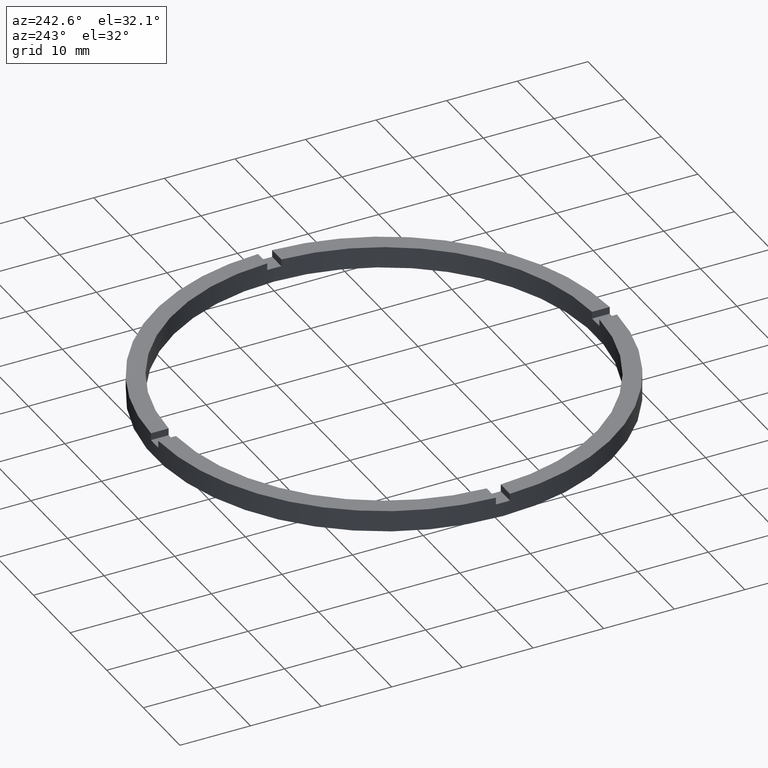
[diagram: clean part render]
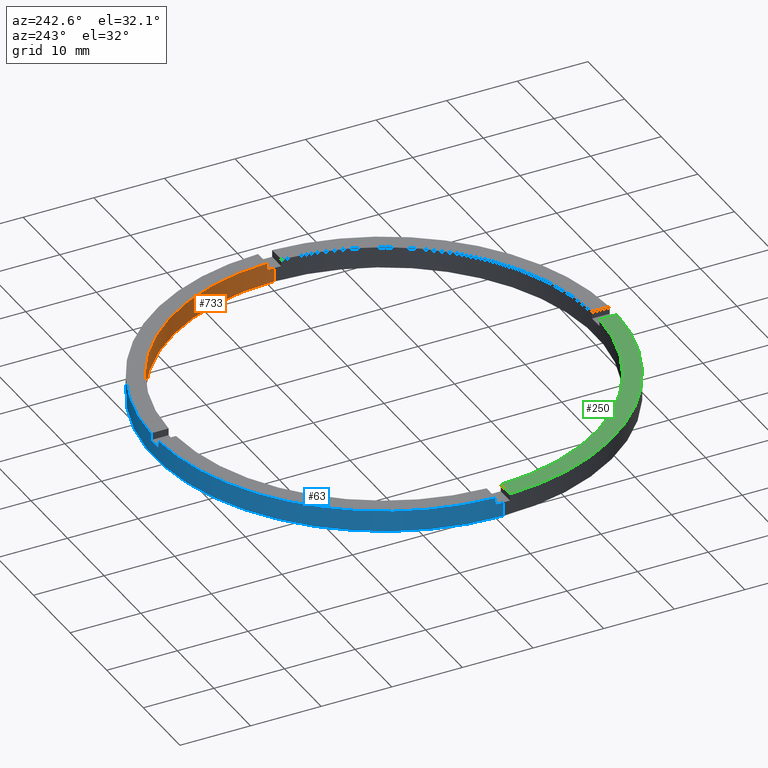
[diagram: same view with three faces highlighted in distinct colors, each labeled with its STEP entity id]
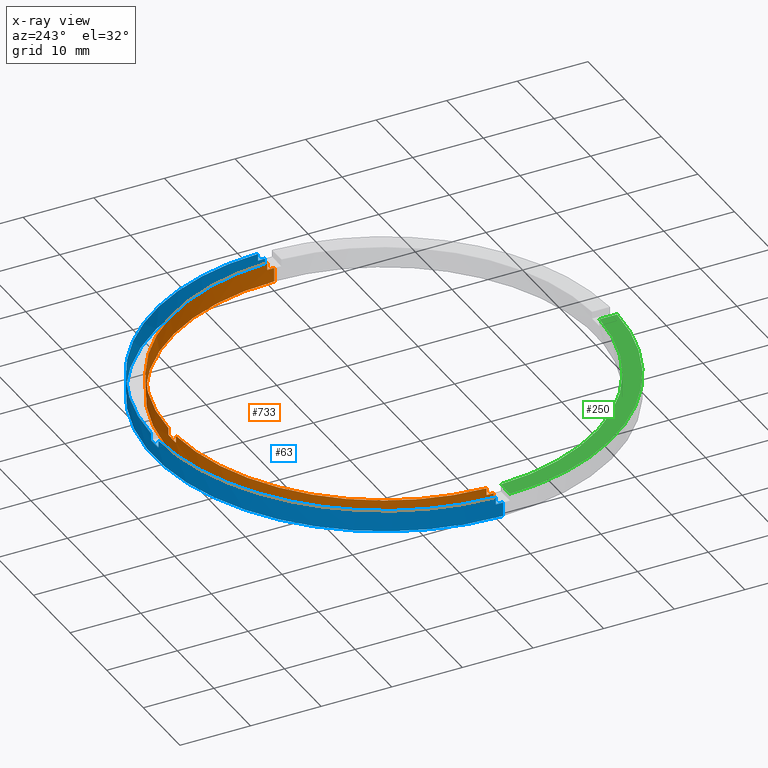
[diagram: x-ray of the same camera — body ghosted, the three highlighted faces saturated]
A machine part, auxiliary view with three faces highlighted in distinct colors.
The next image is the same camera in x-ray (body ghosted, the three faces saturated) — at least one of them is partly hidden behind the body in this view.
Their STEP definitions:

[orange] entity #733 — the highlighted cylindrical surface (partial cylindrical patch) has radius 30 mm, axis along (-0, -0, -1).
#2 = DIRECTION ( 'NONE',  ( -0.000000000000000000, -0.000000000000000000, -1.000000000000000000 ) ) ;
#3 = AXIS2_PLACEMENT_3D ( 'NONE', #539, #257, #454 ) ;
#13 = DIRECTION ( 'NONE',  ( 1.000000000000000000, 0.000000000000000000, 0.000000000000000000 ) ) ;
#23 = LINE ( 'NONE', #578, #48 ) ;
#24 = CIRCLE ( 'NONE', #522, 30.00000000000000000 ) ;
#29 = VECTOR ( 'NONE', #495, 1000.000000000000000 ) ;
#39 = VECTOR ( 'NONE', #409, 1000.000000000000000 ) ;
#45 = VECTOR ( 'NONE', #623, 1000.000000000000000 ) ;
#47 = LINE ( 'NONE', #389, #45 ) ;
#48 = VECTOR ( 'NONE', #485, 1000.000000000000000 ) ;
#50 = LINE ( 'NONE', #152, #582 ) ;
#55 = LINE ( 'NONE', #413, #319 ) ;
#61 = EDGE_CURVE ( 'NONE', #425, #439, #553, .T. ) ;
#66 = CARTESIAN_POINT ( 'NONE',  ( 0.000000000000000000, 0.000000000000000000, 3.000000000000000000 ) ) ;
#80 = VERTEX_POINT ( 'NONE', #774 ) ;
#123 = CIRCLE ( 'NONE', #520, 30.00000000000000000 ) ;
#132 = EDGE_CURVE ( 'NONE', #585, #80, #24, .T. ) ;
#138 = CARTESIAN_POINT ( 'NONE',  ( 0.9999999999999753530, 29.98332870112989923, 2.000000000000000000 ) ) ;
#146 = ORIENTED_EDGE ( 'NONE', *, *, #251, .F. ) ;
#152 = CARTESIAN_POINT ( 'NONE',  ( 0.9999999999999753530, 29.98332870112989923, 3.000000000000000000 ) ) ;
#163 = VERTEX_POINT ( 'NONE', #138 ) ;
#181 = CARTESIAN_POINT ( 'NONE',  ( 0.000000000000000000, 0.000000000000000000, 2.000000000000000000 ) ) ;
#186 = ORIENTED_EDGE ( 'NONE', *, *, #749, .T. ) ;
#191 = ORIENTED_EDGE ( 'NONE', *, *, #244, .F. ) ;
#211 = DIRECTION ( 'NONE',  ( 0.000000000000000000, 0.000000000000000000, 1.000000000000000000 ) ) ;
#215 = DIRECTION ( 'NONE',  ( -1.000000000000000000, 0.000000000000000000, 0.000000000000000000 ) ) ;
#221 = DIRECTION ( 'NONE',  ( 0.000000000000000000, 0.000000000000000000, 1.000000000000000000 ) ) ;
#244 = EDGE_CURVE ( 'NONE', #635, #716, #47, .T. ) ;
#246 = EDGE_CURVE ( 'NONE', #673, #689, #312, .T. ) ;
#251 = EDGE_CURVE ( 'NONE', #163, #80, #50, .T. ) ;
#256 = DIRECTION ( 'NONE',  ( 1.000000000000000000, 0.000000000000000000, 0.000000000000000000 ) ) ;
#257 = DIRECTION ( 'NONE',  ( 0.000000000000000000, 0.000000000000000000, 1.000000000000000000 ) ) ;
#259 = CARTESIAN_POINT ( 'NONE',  ( -1.000000000000024647, 29.98332870112989568, 3.000000000000000000 ) ) ;
#260 = CARTESIAN_POINT ( 'NONE',  ( 0.000000000000000000, 0.000000000000000000, 3.000000000000000000 ) ) ;
#264 = AXIS2_PLACEMENT_3D ( 'NONE', #260, #406, #13 ) ;
#265 = EDGE_CURVE ( 'NONE', #351, #727, #55, .T. ) ;
#270 = CARTESIAN_POINT ( 'NONE',  ( 29.98332870112990278, 0.9999999999998412381, 3.000000000000000000 ) ) ;
#276 = CARTESIAN_POINT ( 'NONE',  ( -29.98332870112989923, 0.9999999999999744649, 3.000000000000000000 ) ) ;
#277 = CARTESIAN_POINT ( 'NONE',  ( -29.98332870112989923, 0.9999999999999744649, 2.000000000000000000 ) ) ;
#293 = CARTESIAN_POINT ( 'NONE',  ( 0.000000000000000000, 0.000000000000000000, 3.000000000000000000 ) ) ;
#307 = CIRCLE ( 'NONE', #264, 30.00000000000000000 ) ;
#312 = CIRCLE ( 'NONE', #766, 30.00000000000000000 ) ;
#313 = CIRCLE ( 'NONE', #551, 30.00000000000000000 ) ;
#319 = VECTOR ( 'NONE', #348, 1000.000000000000000 ) ;
#332 = CARTESIAN_POINT ( 'NONE',  ( 0.000000000000000000, 0.000000000000000000, 2.000000000000000000 ) ) ;
#341 = CARTESIAN_POINT ( 'NONE',  ( -30.00000000000000000, 0.000000000000000000, 2.000000000000000000 ) ) ;
#348 = DIRECTION ( 'NONE',  ( -0.000000000000000000, -0.000000000000000000, -1.000000000000000000 ) ) ;
#351 = VERTEX_POINT ( 'NONE', #341 ) ;
#362 = FACE_OUTER_BOUND ( 'NONE', #676, .T. ) ;
#387 = ORIENTED_EDGE ( 'NONE', *, *, #504, .F. ) ;
#389 = CARTESIAN_POINT ( 'NONE',  ( -1.000000000000024647, 29.98332870112989568, 3.000000000000000000 ) ) ;
#406 = DIRECTION ( 'NONE',  ( 0.000000000000000000, 0.000000000000000000, 1.000000000000000000 ) ) ;
#409 = DIRECTION ( 'NONE',  ( -0.000000000000000000, -0.000000000000000000, -1.000000000000000000 ) ) ;
#413 = CARTESIAN_POINT ( 'NONE',  ( -30.00000000000000000, 0.000000000000000000, 3.000000000000000000 ) ) ;
#418 = VERTEX_POINT ( 'NONE', #492 ) ;
#425 = VERTEX_POINT ( 'NONE', #277 ) ;
#431 = ORIENTED_EDGE ( 'NONE', *, *, #61, .F. ) ;
#436 = ORIENTED_EDGE ( 'NONE', *, *, #132, .T. ) ;
#439 = VERTEX_POINT ( 'NONE', #642 ) ;
#440 = ORIENTED_EDGE ( 'NONE', *, *, #552, .F. ) ;
#445 = ORIENTED_EDGE ( 'NONE', *, *, #556, .T. ) ;
#454 = DIRECTION ( 'NONE',  ( 1.000000000000000000, 0.000000000000000000, 0.000000000000000000 ) ) ;
#485 = DIRECTION ( 'NONE',  ( -0.000000000000000000, -0.000000000000000000, -1.000000000000000000 ) ) ;
#492 = CARTESIAN_POINT ( 'NONE',  ( 30.00000000000000000, 3.673940397442059178E-15, 0.000000000000000000 ) ) ;
#495 = DIRECTION ( 'NONE',  ( 0.000000000000000000, 0.000000000000000000, 1.000000000000000000 ) ) ;
#501 = DIRECTION ( 'NONE',  ( 0.000000000000000000, 0.000000000000000000, 1.000000000000000000 ) ) ;
#504 = EDGE_CURVE ( 'NONE', #673, #418, #569, .T. ) ;
#520 = AXIS2_PLACEMENT_3D ( 'NONE', #181, #221, #782 ) ;
#522 = AXIS2_PLACEMENT_3D ( 'NONE', #293, #501, #538 ) ;
#528 = EDGE_CURVE ( 'NONE', #635, #439, #307, .T. ) ;
#535 = CARTESIAN_POINT ( 'NONE',  ( 30.00000000000000000, 3.673940397442059178E-15, 3.000000000000000000 ) ) ;
#538 = DIRECTION ( 'NONE',  ( 1.000000000000000000, 0.000000000000000000, 0.000000000000000000 ) ) ;
#539 = CARTESIAN_POINT ( 'NONE',  ( 0.000000000000000000, 0.000000000000000000, 0.000000000000000000 ) ) ;
#546 = CARTESIAN_POINT ( 'NONE',  ( 30.00000000000000000, 3.673940397442059178E-15, 2.000000000000000000 ) ) ;
#551 = AXIS2_PLACEMENT_3D ( 'NONE', #645, #697, #765 ) ;
#552 = EDGE_CURVE ( 'NONE', #585, #689, #23, .T. ) ;
#553 = LINE ( 'NONE', #276, #29 ) ;
#556 = EDGE_CURVE ( 'NONE', #163, #716, #313, .T. ) ;
#569 = LINE ( 'NONE', #535, #39 ) ;
#578 = CARTESIAN_POINT ( 'NONE',  ( 29.98332870112990278, 0.9999999999998412381, 3.000000000000000000 ) ) ;
#582 = VECTOR ( 'NONE', #591, 1000.000000000000000 ) ;
#585 = VERTEX_POINT ( 'NONE', #270 ) ;
#591 = DIRECTION ( 'NONE',  ( 0.000000000000000000, 0.000000000000000000, 1.000000000000000000 ) ) ;
#595 = AXIS2_PLACEMENT_3D ( 'NONE', #66, #2, #215 ) ;
#610 = ORIENTED_EDGE ( 'NONE', *, *, #528, .T. ) ;
#616 = ORIENTED_EDGE ( 'NONE', *, *, #246, .T. ) ;
#618 = CARTESIAN_POINT ( 'NONE',  ( -1.000000000000024647, 29.98332870112989568, 2.000000000000000000 ) ) ;
#623 = DIRECTION ( 'NONE',  ( -0.000000000000000000, -0.000000000000000000, -1.000000000000000000 ) ) ;
#626 = CIRCLE ( 'NONE', #3, 30.00000000000000000 ) ;
#635 = VERTEX_POINT ( 'NONE', #259 ) ;
#642 = CARTESIAN_POINT ( 'NONE',  ( -29.98332870112989923, 0.9999999999999744649, 3.000000000000000000 ) ) ;
#645 = CARTESIAN_POINT ( 'NONE',  ( 0.000000000000000000, 0.000000000000000000, 2.000000000000000000 ) ) ;
#648 = EDGE_CURVE ( 'NONE', #418, #727, #626, .T. ) ;
#664 = CYLINDRICAL_SURFACE ( 'NONE', #595, 30.00000000000000000 ) ;
#673 = VERTEX_POINT ( 'NONE', #546 ) ;
#676 = EDGE_LOOP ( 'NONE', ( #387, #616, #440, #436, #146, #445, #191, #610, #431, #186, #679, #682 ) ) ;
#679 = ORIENTED_EDGE ( 'NONE', *, *, #265, .T. ) ;
#682 = ORIENTED_EDGE ( 'NONE', *, *, #648, .F. ) ;
#689 = VERTEX_POINT ( 'NONE', #744 ) ;
#697 = DIRECTION ( 'NONE',  ( 0.000000000000000000, -0.000000000000000000, 1.000000000000000000 ) ) ;
#716 = VERTEX_POINT ( 'NONE', #618 ) ;
#727 = VERTEX_POINT ( 'NONE', #750 ) ;
#733 = ADVANCED_FACE ( 'NONE', ( #362 ), #664, .F. ) ;
#744 = CARTESIAN_POINT ( 'NONE',  ( 29.98332870112990278, 0.9999999999998412381, 2.000000000000000000 ) ) ;
#749 = EDGE_CURVE ( 'NONE', #425, #351, #123, .T. ) ;
#750 = CARTESIAN_POINT ( 'NONE',  ( -30.00000000000000000, 0.000000000000000000, 0.000000000000000000 ) ) ;
#765 = DIRECTION ( 'NONE',  ( 1.000000000000000000, 0.000000000000000000, 0.000000000000000000 ) ) ;
#766 = AXIS2_PLACEMENT_3D ( 'NONE', #332, #211, #256 ) ;
#774 = CARTESIAN_POINT ( 'NONE',  ( 0.9999999999999753530, 29.98332870112989923, 3.000000000000000000 ) ) ;
#782 = DIRECTION ( 'NONE',  ( 1.000000000000000000, 0.000000000000000000, 0.000000000000000000 ) ) ;

[blue] entity #63 — the highlighted cylindrical surface (partial cylindrical patch) has radius 32.5 mm, axis along (-0, -0, -1).
#4 = EDGE_CURVE ( 'NONE', #588, #58, #573, .T. ) ;
#6 = EDGE_CURVE ( 'NONE', #388, #27, #32, .T. ) ;
#11 = VECTOR ( 'NONE', #478, 1000.000000000000000 ) ;
#15 = AXIS2_PLACEMENT_3D ( 'NONE', #90, #268, #776 ) ;
#16 = CARTESIAN_POINT ( 'NONE',  ( -32.50000000000000000, 0.000000000000000000, 2.000000000000000000 ) ) ;
#22 = CARTESIAN_POINT ( 'NONE',  ( -32.50000000000000000, 0.000000000000000000, 3.000000000000000000 ) ) ;
#27 = VERTEX_POINT ( 'NONE', #102 ) ;
#30 = DIRECTION ( 'NONE',  ( 1.000000000000000000, 0.000000000000000000, 0.000000000000000000 ) ) ;
#31 = LINE ( 'NONE', #137, #572 ) ;
#32 = CIRCLE ( 'NONE', #15, 32.50000000000000000 ) ;
#35 = FACE_OUTER_BOUND ( 'NONE', #357, .T. ) ;
#38 = CYLINDRICAL_SURFACE ( 'NONE', #657, 32.50000000000000000 ) ;
#42 = DIRECTION ( 'NONE',  ( -0.000000000000000000, -0.000000000000000000, -1.000000000000000000 ) ) ;
#43 = LINE ( 'NONE', #92, #574 ) ;
#58 = VERTEX_POINT ( 'NONE', #16 ) ;
#63 = ADVANCED_FACE ( 'NONE', ( #35 ), #38, .T. ) ;
#64 = CARTESIAN_POINT ( 'NONE',  ( 32.50000000000000000, 3.980102097228898626E-15, 2.000000000000000000 ) ) ;
#78 = DIRECTION ( 'NONE',  ( 1.000000000000000000, 0.000000000000000000, 0.000000000000000000 ) ) ;
#90 = CARTESIAN_POINT ( 'NONE',  ( 0.000000000000000000, 0.000000000000000000, 3.000000000000000000 ) ) ;
#92 = CARTESIAN_POINT ( 'NONE',  ( -1.000000000000024647, 32.48461174156157227, 3.000000000000000000 ) ) ;
#93 = EDGE_CURVE ( 'NONE', #476, #731, #542, .T. ) ;
#97 = AXIS2_PLACEMENT_3D ( 'NONE', #652, #770, #30 ) ;
#102 = CARTESIAN_POINT ( 'NONE',  ( 0.9999999999999753530, 32.48461174156157227, 3.000000000000000000 ) ) ;
#114 = CIRCLE ( 'NONE', #543, 32.50000000000000000 ) ;
#117 = AXIS2_PLACEMENT_3D ( 'NONE', #360, #414, #419 ) ;
#118 = VECTOR ( 'NONE', #771, 1000.000000000000000 ) ;
#130 = CARTESIAN_POINT ( 'NONE',  ( -32.50000000000000000, 0.000000000000000000, 0.000000000000000000 ) ) ;
#133 = EDGE_CURVE ( 'NONE', #420, #27, #278, .T. ) ;
#137 = CARTESIAN_POINT ( 'NONE',  ( 32.48461174156157938, 0.9999999999998414602, 3.000000000000000000 ) ) ;
#150 = ORIENTED_EDGE ( 'NONE', *, *, #701, .F. ) ;
#164 = VERTEX_POINT ( 'NONE', #258 ) ;
#182 = ORIENTED_EDGE ( 'NONE', *, *, #515, .T. ) ;
#183 = ORIENTED_EDGE ( 'NONE', *, *, #611, .T. ) ;
#203 = ORIENTED_EDGE ( 'NONE', *, *, #93, .T. ) ;
#212 = AXIS2_PLACEMENT_3D ( 'NONE', #761, #222, #338 ) ;
#222 = DIRECTION ( 'NONE',  ( 0.000000000000000000, 0.000000000000000000, 1.000000000000000000 ) ) ;
#245 = CARTESIAN_POINT ( 'NONE',  ( 32.50000000000000000, 3.980102097228898626E-15, 3.000000000000000000 ) ) ;
#253 = CARTESIAN_POINT ( 'NONE',  ( 32.48461174156157938, 0.9999999999998414602, 3.000000000000000000 ) ) ;
#258 = CARTESIAN_POINT ( 'NONE',  ( -1.000000000000024647, 32.48461174156157227, 2.000000000000000000 ) ) ;
#268 = DIRECTION ( 'NONE',  ( 0.000000000000000000, 0.000000000000000000, 1.000000000000000000 ) ) ;
#278 = LINE ( 'NONE', #710, #11 ) ;
#295 = CIRCLE ( 'NONE', #660, 32.50000000000000000 ) ;
#298 = DIRECTION ( 'NONE',  ( 0.000000000000000000, 0.000000000000000000, 1.000000000000000000 ) ) ;
#301 = ORIENTED_EDGE ( 'NONE', *, *, #675, .T. ) ;
#303 = ORIENTED_EDGE ( 'NONE', *, *, #6, .F. ) ;
#311 = VERTEX_POINT ( 'NONE', #721 ) ;
#318 = ORIENTED_EDGE ( 'NONE', *, *, #513, .F. ) ;
#330 = CARTESIAN_POINT ( 'NONE',  ( 0.9999999999999753530, 32.48461174156157227, 2.000000000000000000 ) ) ;
#338 = DIRECTION ( 'NONE',  ( 1.000000000000000000, 0.000000000000000000, 0.000000000000000000 ) ) ;
#344 = CARTESIAN_POINT ( 'NONE',  ( 32.50000000000000000, 3.980102097228898626E-15, 0.000000000000000000 ) ) ;
#355 = CARTESIAN_POINT ( 'NONE',  ( -32.48461174156157227, 0.9999999999999740208, 3.000000000000000000 ) ) ;
#357 = EDGE_LOOP ( 'NONE', ( #150, #183, #203, #470, #709, #301, #451, #674, #318, #589, #303, #182 ) ) ;
#360 = CARTESIAN_POINT ( 'NONE',  ( 0.000000000000000000, 0.000000000000000000, 0.000000000000000000 ) ) ;
#379 = CIRCLE ( 'NONE', #212, 32.50000000000000000 ) ;
#380 = VECTOR ( 'NONE', #42, 1000.000000000000000 ) ;
#388 = VERTEX_POINT ( 'NONE', #253 ) ;
#390 = CARTESIAN_POINT ( 'NONE',  ( 0.000000000000000000, 0.000000000000000000, 2.000000000000000000 ) ) ;
#395 = LINE ( 'NONE', #22, #118 ) ;
#401 = CARTESIAN_POINT ( 'NONE',  ( -1.000000000000024647, 32.48461174156157227, 3.000000000000000000 ) ) ;
#407 = DIRECTION ( 'NONE',  ( -0.000000000000000000, -0.000000000000000000, -1.000000000000000000 ) ) ;
#414 = DIRECTION ( 'NONE',  ( 0.000000000000000000, 0.000000000000000000, 1.000000000000000000 ) ) ;
#419 = DIRECTION ( 'NONE',  ( 1.000000000000000000, 0.000000000000000000, 0.000000000000000000 ) ) ;
#420 = VERTEX_POINT ( 'NONE', #330 ) ;
#421 = EDGE_CURVE ( 'NONE', #456, #434, #379, .T. ) ;
#428 = EDGE_CURVE ( 'NONE', #58, #731, #395, .T. ) ;
#434 = VERTEX_POINT ( 'NONE', #355 ) ;
#451 = ORIENTED_EDGE ( 'NONE', *, *, #421, .F. ) ;
#456 = VERTEX_POINT ( 'NONE', #401 ) ;
#470 = ORIENTED_EDGE ( 'NONE', *, *, #428, .F. ) ;
#476 = VERTEX_POINT ( 'NONE', #344 ) ;
#477 = CARTESIAN_POINT ( 'NONE',  ( 0.000000000000000000, 0.000000000000000000, 2.000000000000000000 ) ) ;
#478 = DIRECTION ( 'NONE',  ( 0.000000000000000000, 0.000000000000000000, 1.000000000000000000 ) ) ;
#509 = VECTOR ( 'NONE', #298, 1000.000000000000000 ) ;
#513 = EDGE_CURVE ( 'NONE', #420, #164, #295, .T. ) ;
#515 = EDGE_CURVE ( 'NONE', #388, #311, #31, .T. ) ;
#524 = DIRECTION ( 'NONE',  ( -0.000000000000000000, -0.000000000000000000, -1.000000000000000000 ) ) ;
#530 = EDGE_CURVE ( 'NONE', #456, #164, #43, .T. ) ;
#542 = CIRCLE ( 'NONE', #117, 32.50000000000000000 ) ;
#543 = AXIS2_PLACEMENT_3D ( 'NONE', #390, #628, #741 ) ;
#572 = VECTOR ( 'NONE', #407, 1000.000000000000000 ) ;
#573 = CIRCLE ( 'NONE', #97, 32.50000000000000000 ) ;
#574 = VECTOR ( 'NONE', #524, 1000.000000000000000 ) ;
#588 = VERTEX_POINT ( 'NONE', #736 ) ;
#589 = ORIENTED_EDGE ( 'NONE', *, *, #133, .T. ) ;
#597 = CARTESIAN_POINT ( 'NONE',  ( 0.000000000000000000, 0.000000000000000000, 3.000000000000000000 ) ) ;
#611 = EDGE_CURVE ( 'NONE', #625, #476, #640, .T. ) ;
#625 = VERTEX_POINT ( 'NONE', #64 ) ;
#628 = DIRECTION ( 'NONE',  ( 0.000000000000000000, 0.000000000000000000, 1.000000000000000000 ) ) ;
#640 = LINE ( 'NONE', #245, #380 ) ;
#652 = CARTESIAN_POINT ( 'NONE',  ( 0.000000000000000000, 0.000000000000000000, 2.000000000000000000 ) ) ;
#653 = DIRECTION ( 'NONE',  ( -0.000000000000000000, -0.000000000000000000, -1.000000000000000000 ) ) ;
#657 = AXIS2_PLACEMENT_3D ( 'NONE', #597, #653, #726 ) ;
#660 = AXIS2_PLACEMENT_3D ( 'NONE', #477, #756, #78 ) ;
#672 = CARTESIAN_POINT ( 'NONE',  ( -32.48461174156157227, 0.9999999999999740208, 3.000000000000000000 ) ) ;
#674 = ORIENTED_EDGE ( 'NONE', *, *, #530, .T. ) ;
#675 = EDGE_CURVE ( 'NONE', #588, #434, #759, .T. ) ;
#701 = EDGE_CURVE ( 'NONE', #625, #311, #114, .T. ) ;
#709 = ORIENTED_EDGE ( 'NONE', *, *, #4, .F. ) ;
#710 = CARTESIAN_POINT ( 'NONE',  ( 0.9999999999999753530, 32.48461174156157227, 3.000000000000000000 ) ) ;
#721 = CARTESIAN_POINT ( 'NONE',  ( 32.48461174156157938, 0.9999999999998414602, 2.000000000000000000 ) ) ;
#726 = DIRECTION ( 'NONE',  ( -1.000000000000000000, 0.000000000000000000, 0.000000000000000000 ) ) ;
#731 = VERTEX_POINT ( 'NONE', #130 ) ;
#736 = CARTESIAN_POINT ( 'NONE',  ( -32.48461174156157227, 0.9999999999999740208, 2.000000000000000000 ) ) ;
#741 = DIRECTION ( 'NONE',  ( 1.000000000000000000, 0.000000000000000000, 0.000000000000000000 ) ) ;
#756 = DIRECTION ( 'NONE',  ( 0.000000000000000000, -0.000000000000000000, 1.000000000000000000 ) ) ;
#759 = LINE ( 'NONE', #672, #509 ) ;
#761 = CARTESIAN_POINT ( 'NONE',  ( 0.000000000000000000, 0.000000000000000000, 3.000000000000000000 ) ) ;
#770 = DIRECTION ( 'NONE',  ( 0.000000000000000000, 0.000000000000000000, 1.000000000000000000 ) ) ;
#771 = DIRECTION ( 'NONE',  ( -0.000000000000000000, -0.000000000000000000, -1.000000000000000000 ) ) ;
#776 = DIRECTION ( 'NONE',  ( 1.000000000000000000, 0.000000000000000000, 0.000000000000000000 ) ) ;

[green] entity #250 — the highlighted planar face has unit normal (0, 0, 1).
#1 = AXIS2_PLACEMENT_3D ( 'NONE', #757, #752, #563 ) ;
#49 = VERTEX_POINT ( 'NONE', #536 ) ;
#62 = DIRECTION ( 'NONE',  ( 0.000000000000000000, 0.000000000000000000, 1.000000000000000000 ) ) ;
#70 = DIRECTION ( 'NONE',  ( 1.000000000000000000, 1.951563910473908228E-16, -0.000000000000000000 ) ) ;
#73 = ORIENTED_EDGE ( 'NONE', *, *, #781, .F. ) ;
#87 = VECTOR ( 'NONE', #70, 1000.000000000000000 ) ;
#125 = DIRECTION ( 'NONE',  ( 1.301042606982605074E-16, -1.000000000000000000, 0.000000000000000000 ) ) ;
#148 = EDGE_CURVE ( 'NONE', #356, #49, #554, .T. ) ;
#151 = VERTEX_POINT ( 'NONE', #691 ) ;
#223 = PLANE ( 'NONE',  #447 ) ;
#250 = ADVANCED_FACE ( 'NONE', ( #579 ), #223, .T. ) ;
#252 = DIRECTION ( 'NONE',  ( 1.000000000000000000, 0.000000000000000000, 0.000000000000000000 ) ) ;
#261 = AXIS2_PLACEMENT_3D ( 'NONE', #667, #62, #252 ) ;
#329 = CARTESIAN_POINT ( 'NONE',  ( -1.000000000000162537, -22.50000000000018119, 3.000000000000000000 ) ) ;
#331 = EDGE_LOOP ( 'NONE', ( #73, #487, #342, #622 ) ) ;
#342 = ORIENTED_EDGE ( 'NONE', *, *, #366, .F. ) ;
#356 = VERTEX_POINT ( 'NONE', #511 ) ;
#361 = LINE ( 'NONE', #670, #87 ) ;
#366 = EDGE_CURVE ( 'NONE', #356, #600, #361, .T. ) ;
#415 = CARTESIAN_POINT ( 'NONE',  ( -29.98332870112989568, -1.000000000000025535, 3.000000000000000000 ) ) ;
#447 = AXIS2_PLACEMENT_3D ( 'NONE', #534, #532, #525 ) ;
#487 = ORIENTED_EDGE ( 'NONE', *, *, #663, .F. ) ;
#502 = VECTOR ( 'NONE', #125, 1000.000000000000000 ) ;
#511 = CARTESIAN_POINT ( 'NONE',  ( -32.48461174156157227, -1.000000000000025979, 3.000000000000000000 ) ) ;
#514 = CIRCLE ( 'NONE', #261, 30.00000000000000000 ) ;
#525 = DIRECTION ( 'NONE',  ( 1.000000000000000000, 0.000000000000000000, -0.000000000000000000 ) ) ;
#532 = DIRECTION ( 'NONE',  ( 0.000000000000000000, 0.000000000000000000, 1.000000000000000000 ) ) ;
#534 = CARTESIAN_POINT ( 'NONE',  ( 0.000000000000000000, 0.000000000000000000, 3.000000000000000000 ) ) ;
#536 = CARTESIAN_POINT ( 'NONE',  ( -1.000000000000161426, -32.48461174156157227, 3.000000000000000000 ) ) ;
#554 = CIRCLE ( 'NONE', #1, 32.50000000000000000 ) ;
#563 = DIRECTION ( 'NONE',  ( 1.000000000000000000, 0.000000000000000000, 0.000000000000000000 ) ) ;
#579 = FACE_OUTER_BOUND ( 'NONE', #331, .T. ) ;
#600 = VERTEX_POINT ( 'NONE', #415 ) ;
#622 = ORIENTED_EDGE ( 'NONE', *, *, #148, .T. ) ;
#654 = LINE ( 'NONE', #329, #502 ) ;
#663 = EDGE_CURVE ( 'NONE', #600, #151, #514, .T. ) ;
#667 = CARTESIAN_POINT ( 'NONE',  ( 0.000000000000000000, 0.000000000000000000, 3.000000000000000000 ) ) ;
#670 = CARTESIAN_POINT ( 'NONE',  ( -22.50000000000018474, -1.000000000000023981, 3.000000000000000000 ) ) ;
#691 = CARTESIAN_POINT ( 'NONE',  ( -1.000000000000161648, -29.98332870112989212, 3.000000000000000000 ) ) ;
#752 = DIRECTION ( 'NONE',  ( 0.000000000000000000, 0.000000000000000000, 1.000000000000000000 ) ) ;
#757 = CARTESIAN_POINT ( 'NONE',  ( 0.000000000000000000, 0.000000000000000000, 3.000000000000000000 ) ) ;
#781 = EDGE_CURVE ( 'NONE', #151, #49, #654, .T. ) ;